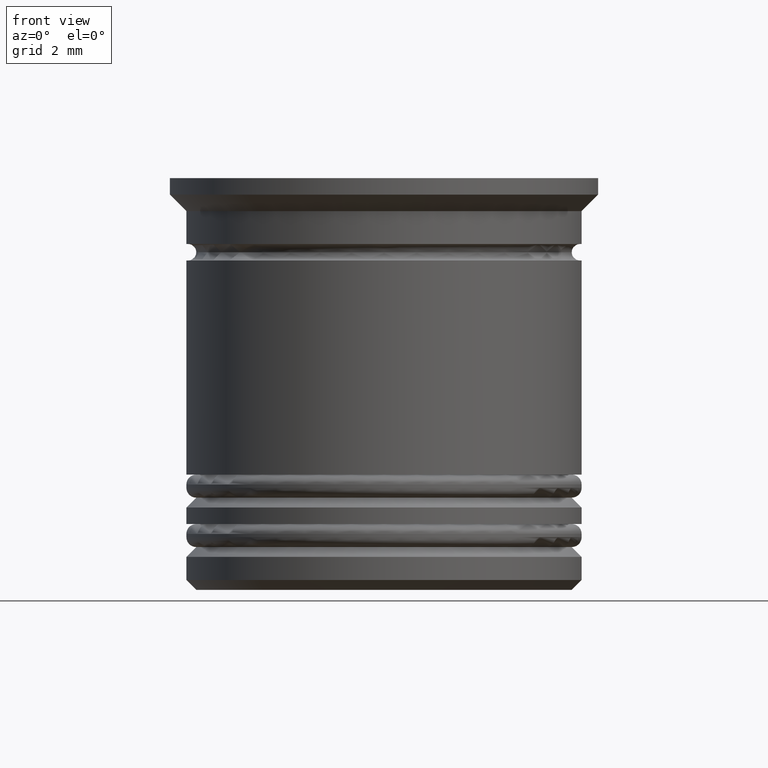
[diagram: clean part render]
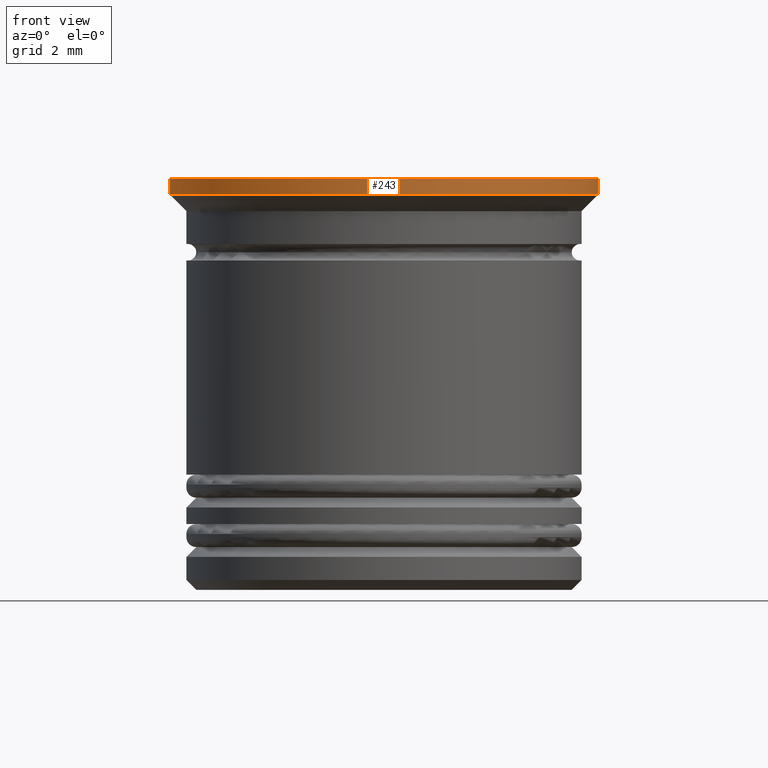
[diagram: same view with one face highlighted and labeled with its STEP entity id]
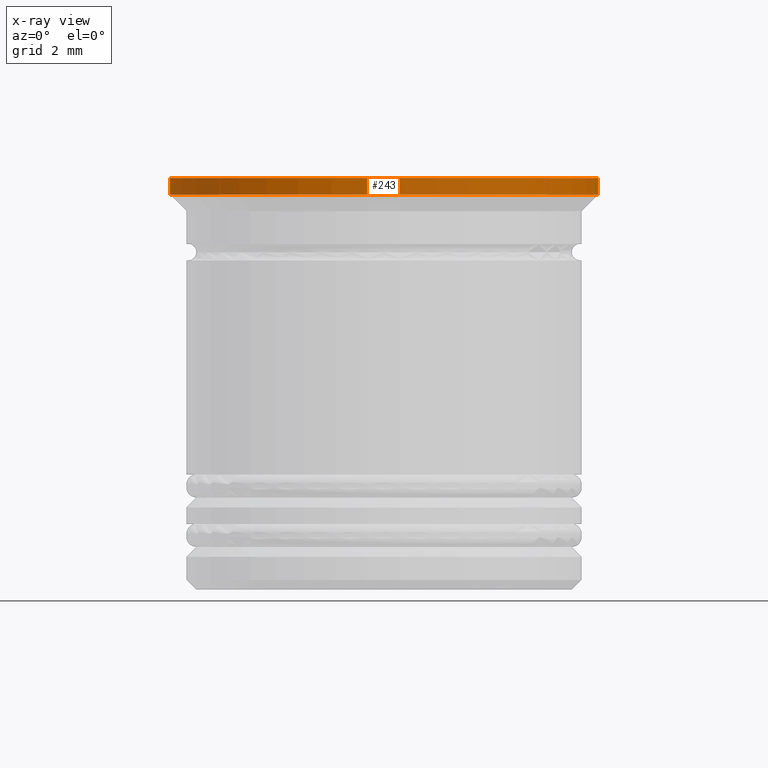
[diagram: x-ray of the same camera — body ghosted, the highlighted face saturated]
A machine part, front view. The second image highlights one B-rep face of the part: STEP entity #243.
The next image is the same camera in x-ray: the body ghosted, the highlighted face saturated — about 0% of this face is hidden behind the body in this view.
In plain terms, the highlighted cylindrical surface (partial cylindrical patch) has radius 6.5 mm, axis along (-0, -0, 1).
Its self-contained STEP definition (entity closure, byte-faithful):
#203 = EDGE_CURVE ( 'NONE', #412, #451, #1376, .T. ) ;
#212 = CARTESIAN_POINT ( 'NONE',  ( 0.000000000000000000, 0.000000000000000000, -0.4999999999999956701 ) ) ;
#243 = ADVANCED_FACE ( 'NONE', ( #488 ), #616, .T. ) ;
#283 = VERTEX_POINT ( 'NONE', #1863 ) ;
#322 = DIRECTION ( 'NONE',  ( -0.000000000000000000, -0.000000000000000000, 1.000000000000000000 ) ) ;
#408 = DIRECTION ( 'NONE',  ( -0.000000000000000000, -0.000000000000000000, 1.000000000000000000 ) ) ;
#412 = VERTEX_POINT ( 'NONE', #1004 ) ;
#451 = VERTEX_POINT ( 'NONE', #1277 ) ;
#488 = FACE_OUTER_BOUND ( 'NONE', #1635, .T. ) ;
#506 = DIRECTION ( 'NONE',  ( -0.000000000000000000, -0.000000000000000000, 1.000000000000000000 ) ) ;
#526 = AXIS2_PLACEMENT_3D ( 'NONE', #1506, #1354, #1826 ) ;
#607 = VECTOR ( 'NONE', #408, 1000.000000000000000 ) ;
#613 = EDGE_CURVE ( 'NONE', #283, #667, #1173, .T. ) ;
#616 = CYLINDRICAL_SURFACE ( 'NONE', #1906, 6.500000000000000000 ) ;
#667 = VERTEX_POINT ( 'NONE', #1711 ) ;
#755 = DIRECTION ( 'NONE',  ( -0.000000000000000000, -0.000000000000000000, 1.000000000000000000 ) ) ;
#841 = DIRECTION ( 'NONE',  ( -1.000000000000000000, 0.000000000000000000, 0.000000000000000000 ) ) ;
#927 = DIRECTION ( 'NONE',  ( 1.000000000000000000, 0.000000000000000000, 0.000000000000000000 ) ) ;
#970 = EDGE_CURVE ( 'NONE', #283, #412, #1661, .T. ) ;
#1000 = ORIENTED_EDGE ( 'NONE', *, *, #1240, .T. ) ;
#1004 = CARTESIAN_POINT ( 'NONE',  ( -6.500000000000000000, 7.960204194457795477E-16, 0.000000000000000000 ) ) ;
#1015 = AXIS2_PLACEMENT_3D ( 'NONE', #212, #506, #841 ) ;
#1071 = CARTESIAN_POINT ( 'NONE',  ( 0.000000000000000000, 0.000000000000000000, 0.000000000000000000 ) ) ;
#1113 = VECTOR ( 'NONE', #755, 1000.000000000000000 ) ;
#1167 = ORIENTED_EDGE ( 'NONE', *, *, #970, .F. ) ;
#1173 = CIRCLE ( 'NONE', #1015, 6.500000000000000000 ) ;
#1240 = EDGE_CURVE ( 'NONE', #667, #451, #1625, .T. ) ;
#1277 = CARTESIAN_POINT ( 'NONE',  ( 6.500000000000000000, 0.000000000000000000, 0.000000000000000000 ) ) ;
#1354 = DIRECTION ( 'NONE',  ( -0.000000000000000000, -0.000000000000000000, 1.000000000000000000 ) ) ;
#1376 = CIRCLE ( 'NONE', #526, 6.500000000000000000 ) ;
#1500 = CARTESIAN_POINT ( 'NONE',  ( -6.500000000000000000, 7.960204194457795477E-16, 0.000000000000000000 ) ) ;
#1506 = CARTESIAN_POINT ( 'NONE',  ( 0.000000000000000000, 0.000000000000000000, 0.000000000000000000 ) ) ;
#1572 = ORIENTED_EDGE ( 'NONE', *, *, #203, .F. ) ;
#1625 = LINE ( 'NONE', #1774, #607 ) ;
#1635 = EDGE_LOOP ( 'NONE', ( #1167, #1734, #1000, #1572 ) ) ;
#1661 = LINE ( 'NONE', #1500, #1113 ) ;
#1711 = CARTESIAN_POINT ( 'NONE',  ( 6.500000000000000000, 0.000000000000000000, -0.4999999999999956701 ) ) ;
#1734 = ORIENTED_EDGE ( 'NONE', *, *, #613, .T. ) ;
#1774 = CARTESIAN_POINT ( 'NONE',  ( 6.500000000000000000, 0.000000000000000000, 0.000000000000000000 ) ) ;
#1826 = DIRECTION ( 'NONE',  ( 1.000000000000000000, 0.000000000000000000, 0.000000000000000000 ) ) ;
#1863 = CARTESIAN_POINT ( 'NONE',  ( -6.500000000000000000, 7.960204194457795477E-16, -0.4999999999999956701 ) ) ;
#1906 = AXIS2_PLACEMENT_3D ( 'NONE', #1071, #322, #927 ) ;